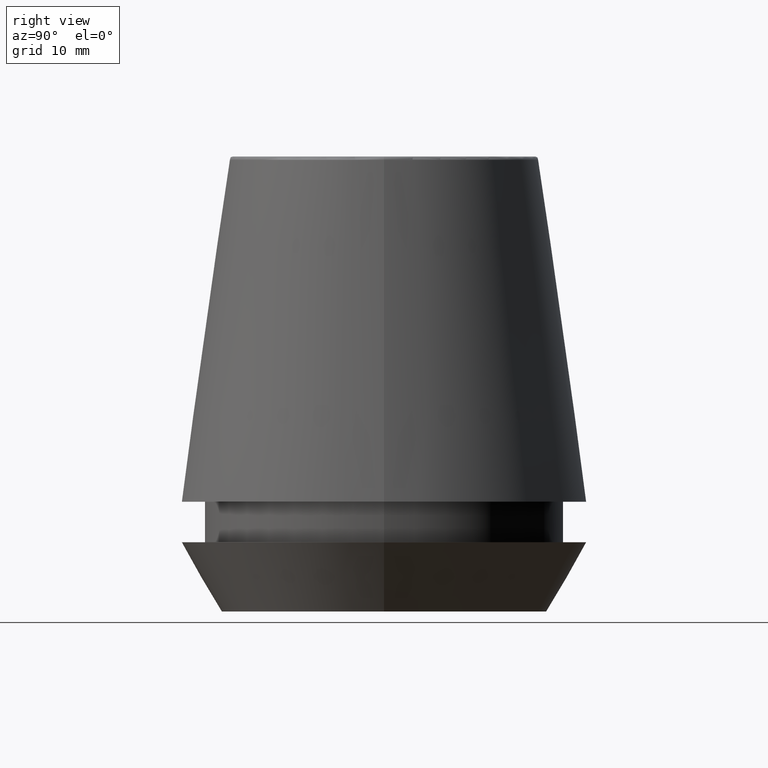
[diagram: clean part render]
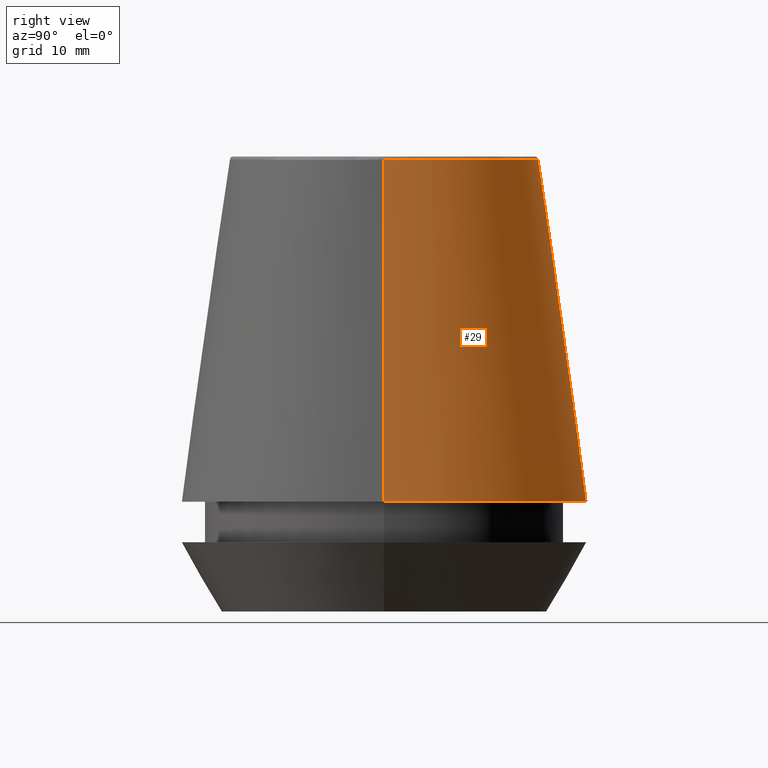
[diagram: same view with one face highlighted and labeled with its STEP entity id]
A machine part, right view. The second image highlights one B-rep face of the part: STEP entity #29.
In plain terms, the highlighted conical surface has half-angle 8 deg.
Its self-contained STEP definition (entity closure, byte-faithful):
#11 = AXIS2_PLACEMENT_3D ( 'NONE', #56, #340, #384 ) ;
#12 = CIRCLE ( 'NONE', #149, 20.50032537154048700 ) ;
#29 = ADVANCED_FACE ( 'NONE', ( #386 ), #266, .T. ) ;
#40 = CARTESIAN_POINT ( 'NONE',  ( 20.50032537154048700, 2.510565784773633700E-015, 11.09999999999999800 ) ) ;
#43 = DIRECTION ( 'NONE',  ( 1.000000000000000000, 0.0000000000000000000, 0.0000000000000000000 ) ) ;
#47 = DIRECTION ( 'NONE',  ( -0.0000000000000000000, -0.0000000000000000000, 1.000000000000000000 ) ) ;
#52 = ORIENTED_EDGE ( 'NONE', *, *, #258, .T. ) ;
#54 = CARTESIAN_POINT ( 'NONE',  ( -20.50032537154048700, 0.0000000000000000000, 11.09999999999999800 ) ) ;
#56 = CARTESIAN_POINT ( 'NONE',  ( 0.0000000000000000000, 0.0000000000000000000, 45.65566924038402900 ) ) ;
#59 = LINE ( 'NONE', #54, #332 ) ;
#62 = CIRCLE ( 'NONE', #11, 15.64384277279740400 ) ;
#64 = CARTESIAN_POINT ( 'NONE',  ( 15.64384277279740400, 2.213191991290356800E-015, 45.65566924038402900 ) ) ;
#76 = EDGE_LOOP ( 'NONE', ( #210, #249, #52, #261 ) ) ;
#89 = DIRECTION ( 'NONE',  ( 0.0000000000000000000, 0.0000000000000000000, -1.000000000000000000 ) ) ;
#96 = EDGE_CURVE ( 'NONE', #112, #329, #59, .T. ) ;
#112 = VERTEX_POINT ( 'NONE', #225 ) ;
#115 = LINE ( 'NONE', #236, #122 ) ;
#120 = DIRECTION ( 'NONE',  ( 0.1391731009600587200, 1.704378926181473400E-017, -0.9902680687415712500 ) ) ;
#122 = VECTOR ( 'NONE', #120, 1000.000000000000000 ) ;
#130 = CARTESIAN_POINT ( 'NONE',  ( 0.0000000000000000000, 0.0000000000000000000, 11.09999999999999800 ) ) ;
#149 = AXIS2_PLACEMENT_3D ( 'NONE', #130, #47, #43 ) ;
#197 = DIRECTION ( 'NONE',  ( -0.1391731009600587200, 0.0000000000000000000, -0.9902680687415712500 ) ) ;
#210 = ORIENTED_EDGE ( 'NONE', *, *, #362, .F. ) ;
#225 = CARTESIAN_POINT ( 'NONE',  ( -15.64384277279740400, 0.0000000000000000000, 45.65566924038402900 ) ) ;
#233 = CARTESIAN_POINT ( 'NONE',  ( 0.0000000000000000000, 0.0000000000000000000, 11.09999999999999800 ) ) ;
#236 = CARTESIAN_POINT ( 'NONE',  ( 20.50032537154048700, 2.510565784773633700E-015, 11.09999999999999800 ) ) ;
#237 = AXIS2_PLACEMENT_3D ( 'NONE', #233, #89, #264 ) ;
#239 = VERTEX_POINT ( 'NONE', #40 ) ;
#249 = ORIENTED_EDGE ( 'NONE', *, *, #339, .T. ) ;
#258 = EDGE_CURVE ( 'NONE', #239, #329, #12, .T. ) ;
#261 = ORIENTED_EDGE ( 'NONE', *, *, #96, .F. ) ;
#264 = DIRECTION ( 'NONE',  ( -1.000000000000000000, 0.0000000000000000000, 0.0000000000000000000 ) ) ;
#266 = CONICAL_SURFACE ( 'NONE', #237, 20.50032537154048700, 0.1396263401595396200 ) ;
#329 = VERTEX_POINT ( 'NONE', #349 ) ;
#332 = VECTOR ( 'NONE', #197, 1000.000000000000000 ) ;
#339 = EDGE_CURVE ( 'NONE', #366, #239, #115, .T. ) ;
#340 = DIRECTION ( 'NONE',  ( -0.0000000000000000000, -0.0000000000000000000, 1.000000000000000000 ) ) ;
#349 = CARTESIAN_POINT ( 'NONE',  ( -20.50032537154048700, 0.0000000000000000000, 11.09999999999999800 ) ) ;
#362 = EDGE_CURVE ( 'NONE', #366, #112, #62, .T. ) ;
#366 = VERTEX_POINT ( 'NONE', #64 ) ;
#384 = DIRECTION ( 'NONE',  ( 1.000000000000000000, 0.0000000000000000000, 0.0000000000000000000 ) ) ;
#386 = FACE_OUTER_BOUND ( 'NONE', #76, .T. ) ;